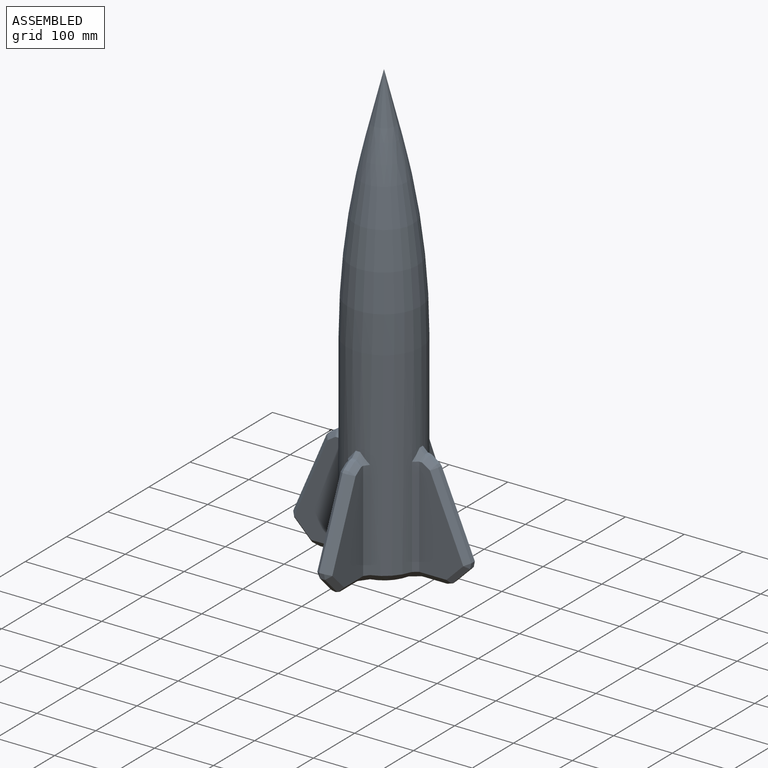
[diagram: assembled view]
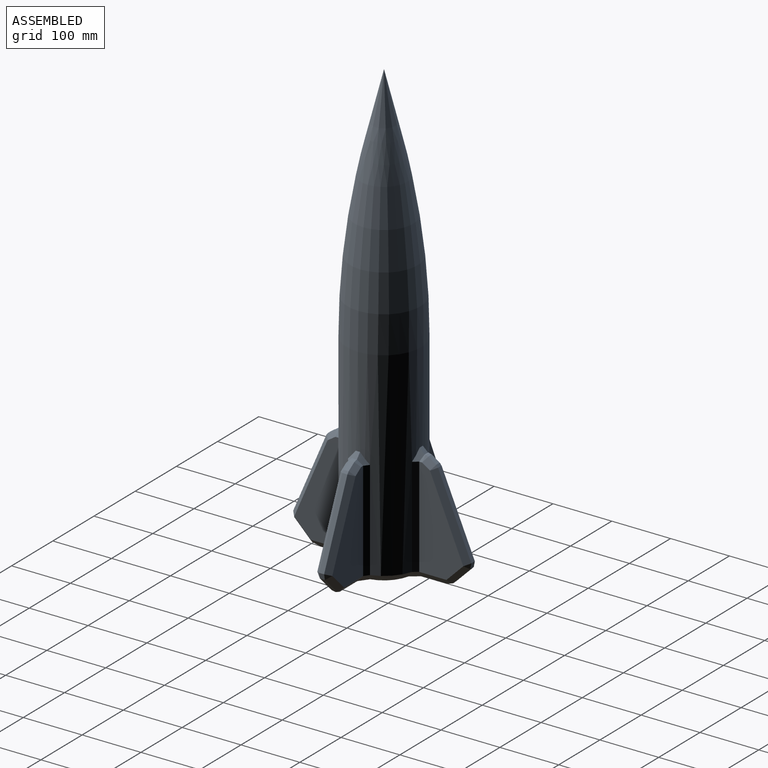
[diagram: assembled view, second angle]
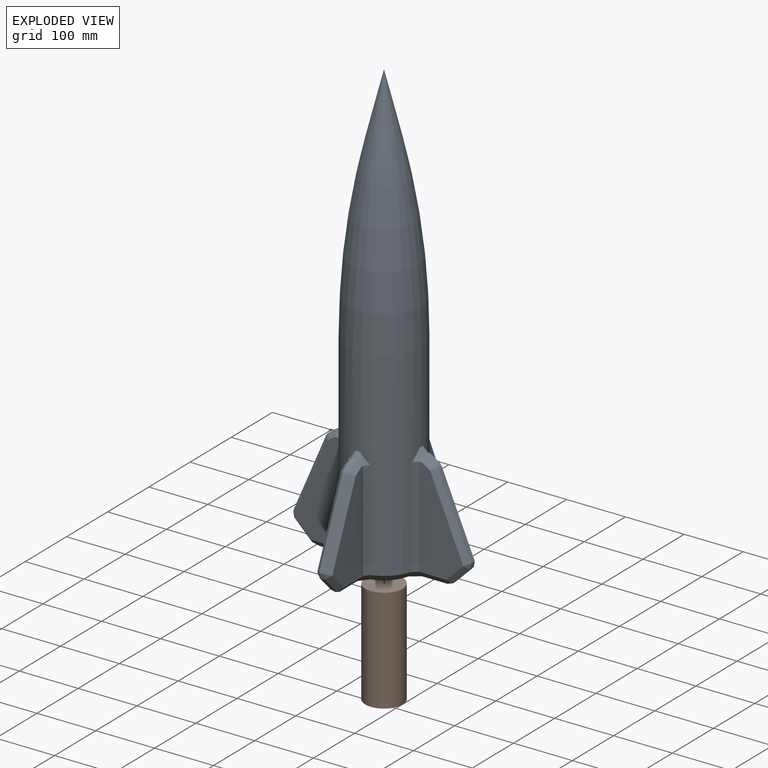
[diagram: exploded view]
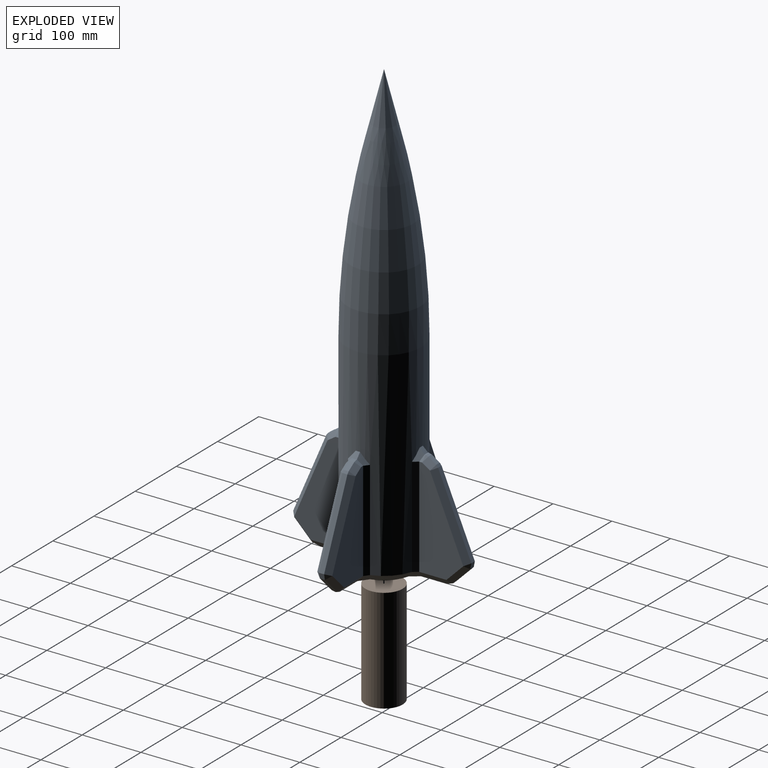
[diagram: exploded view, second angle]
ASSEMBLY  parts=2 mates=2
PART A: 147 faces, bbox 302.8x302.8x762 mm
  f0: plane 129.2x129.2mm, normal (0,0,-1), area 2494.6mm2, adj f121,f123,f124,f126,f127,f130,f135,f137
  f1: plane 169.33x74.85mm, normal (1,0,0), area 7978.3mm2, adj f76,f81,f86,f92,f95,f136
  f2: plane 8.47x1.82mm, normal (0,0,1), area 14.7mm2, adj f87,f88,f92,f93
  f3: plane 169.33x74.85mm, normal (-1,0,0), area 7978.3mm2, adj f74,f78,f83,f88,f89,f133
  f4: plane 131.85x56.51mm, normal (0,-0.92,0.39), area 1214.7mm2, adj f77,f78,f81,f82
  f5: plane 169.33x74.85mm, normal (0,-1,0), area 7978.3mm2, adj f52,f54,f59,f64,f65,f122
  f6: plane 8.47x1.82mm, normal (0,0,1), area 14.7mm2, adj f65,f66,f70,f71
  f7: plane 169.33x74.85mm, normal (0,1,0), area 7978.3mm2, adj f56,f61,f67,f71,f73,f119
  f8: plane 131.85x56.51mm, normal (-0.92,0,0.39), area 1214.7mm2, adj f54,f55,f60,f61
  f9: plane 169.33x74.85mm, normal (-1,0,0), area 7978.3mm2, adj f32,f37,f42,f48,f51,f129
  f10: plane 8.47x1.82mm, normal (0,0,1), area 14.7mm2, adj f43,f44,f48,f49
  f11: plane 169.33x74.85mm, normal (1,0,0), area 7978.3mm2, adj f30,f34,f39,f44,f45,f132
  f12: plane 131.85x56.51mm, normal (0,0.92,0.39), area 1214.7mm2, adj f33,f34,f37,f38
  f13: plane 169.33x74.85mm, normal (0,1,0), area 7978.3mm2, adj f98,f103,f108,f114,f117,f143
  f14: plane 8.47x1.82mm, normal (0,0,1), area 14.7mm2, adj f109,f110,f114,f115
  f15: plane 169.33x74.85mm, normal (0,-1,0), area 7978.3mm2, adj f96,f100,f105,f110,f111,f145
  f16: plane 131.85x56.51mm, normal (0.92,0,0.39), area 1214.7mm2, adj f99,f100,f103,f104
  f17: cylinder r=63.5mm len=338.96mm, axis (0,0,-1), area 108063.5mm2, adj f19,f45,f47,f49,f50,f51,f64,f68
  f18: cone r=63.5mm half-angle=14deg, axis (0,0,-1), area 8476.3mm2, adj f19
  f19: revolved ~308.02x127mm, area 198748.8mm2, adj f17,f18
  f20: cylinder r=31.75mm len=241.3mm, axis (0,0,-1), area 48137.2mm2, adj f21,f146
  f21: plane 63.5x63.5mm, normal (0,0,-1), area 3166.9mm2, adj f20
  f22: plane 13.46x8.88mm, normal (0,0.55,0.83), area 136.5mm2, adj f38,f39,f42,f43
  f23: plane 13.46x8.88mm, normal (-0.55,0,0.83), area 136.5mm2, adj f59,f60,f66,f67
  f24: plane 13.46x8.88mm, normal (0.55,0,0.83), area 136.5mm2, adj f104,f105,f108,f109
  f25: plane 13.46x8.88mm, normal (0,-0.55,0.83), area 136.5mm2, adj f82,f83,f86,f87
  f26: plane 31.96x31.96mm, normal (0.71,0,-0.71), area 364.8mm2, adj f96,f98,f99,f139,f142
  f27: plane 31.96x31.96mm, normal (0,0.71,-0.71), area 364.8mm2, adj f30,f32,f33,f125,f128
  f28: plane 31.96x31.96mm, normal (0,-0.71,-0.71), area 364.8mm2, adj f74,f76,f77,f131,f134
  f29: plane 31.96x31.96mm, normal (-0.71,0,-0.71), area 364.8mm2, adj f52,f55,f56,f118,f120
  f30: plane 34.95x34.59mm, normal (0.71,0.5,-0.5), area 500.8mm2, adj f11,f27,f31,f128,f132
  f31: plane 9.32x8.47mm, normal (0.64,0.76,-0.15), area 52.2mm2, adj f30,f33,f34
  f32: plane 34.95x34.59mm, normal (-0.71,0.5,-0.5), area 500.8mm2, adj f9,f27,f35,f125,f129
  f33: plane 9.32x8.47mm, normal (0,0.98,-0.19), area 80.4mm2, adj f12,f27,f31,f35
  f34: plane 135.19x64.29mm, normal (0.71,0.65,0.28), area 1717.5mm2, adj f11,f12,f31,f36
  f35: plane 9.32x8.47mm, normal (-0.64,0.76,-0.15), area 52.2mm2, adj f32,f33,f37
  f36: plane 8.47x7.78mm, normal (0.69,0.55,0.46), area 28.5mm2, adj f34,f38,f39
  f37: plane 135.19x64.29mm, normal (-0.71,0.65,0.28), area 1717.5mm2, adj f9,f12,f35,f40
  f38: plane 8.47x3.73mm, normal (0,0.77,0.64), area 41.2mm2, adj f12,f22,f36,f40
  f39: plane 18.12x15.94mm, normal (0.71,0.39,0.59), area 193.1mm2, adj f11,f22,f36,f41
  f40: plane 8.47x7.78mm, normal (-0.69,0.55,0.46), area 28.5mm2, adj f37,f38,f42
  f41: plane 8.47x8.47mm, normal (0.69,0.21,0.69), area 28.5mm2, adj f39,f43,f44
  f42: plane 18.12x15.94mm, normal (-0.71,0.39,0.59), area 193.1mm2, adj f9,f22,f40,f46
  f43: plane 8.47x4.66mm, normal (0,0.29,0.96), area 41.2mm2, adj f10,f22,f41,f46
  f44: plane 8.47x8.47mm, normal (0.71,0,0.71), area 40.1mm2, adj f10,f11,f41,f47
  f45: plane 169.33x8.09mm, normal (0.8,0.59,0), area 1703.4mm2, adj f11,f17,f47,f135
  f46: plane 8.47x8.47mm, normal (-0.69,0.21,0.69), area 28.5mm2, adj f42,f43,f48
  f47: bspline ~16.93x14.94mm, area 160.8mm2, adj f17,f44,f45,f49
  f48: plane 8.47x8.47mm, normal (-0.71,0,0.71), area 40.1mm2, adj f9,f10,f46,f50
  f49: cone r=71.97mm half-angle=45deg, axis (0,0,-1), area 95.5mm2, adj f10,f17,f47,f50
  f50: bspline ~16.93x14.94mm, area 160.8mm2, adj f17,f48,f49,f51
  f51: plane 169.33x8.09mm, normal (-0.8,0.59,0), area 1703.4mm2, adj f9,f17,f50,f126
  f52: plane 34.95x34.59mm, normal (-0.5,-0.71,-0.5), area 500.8mm2, adj f5,f29,f53,f120,f122
  f53: plane 9.32x8.47mm, normal (-0.76,-0.64,-0.15), area 52.2mm2, adj f52,f54,f55
  f54: plane 135.19x64.29mm, normal (-0.65,-0.71,0.28), area 1717.5mm2, adj f5,f8,f53,f57
  f55: plane 9.32x8.47mm, normal (-0.98,0,-0.19), area 80.4mm2, adj f8,f29,f53,f58
  f56: plane 34.95x34.59mm, normal (-0.5,0.71,-0.5), area 500.8mm2, adj f7,f29,f58,f118,f119
  f57: plane 8.47x7.78mm, normal (-0.55,-0.69,0.46), area 28.5mm2, adj f54,f59,f60
  f58: plane 9.32x8.47mm, normal (-0.76,0.64,-0.15), area 52.2mm2, adj f55,f56,f61
  f59: plane 18.12x15.94mm, normal (-0.39,-0.71,0.59), area 193.1mm2, adj f5,f23,f57,f62
  f60: plane 8.47x3.73mm, normal (-0.77,0,0.64), area 41.2mm2, adj f8,f23,f57,f63
  f61: plane 135.19x64.29mm, normal (-0.65,0.71,0.28), area 1717.5mm2, adj f7,f8,f58,f63
  f62: plane 8.47x8.47mm, normal (-0.21,-0.69,0.69), area 28.5mm2, adj f59,f65,f66
  f63: plane 8.47x7.78mm, normal (-0.55,0.69,0.46), area 28.5mm2, adj f60,f61,f67
  f64: plane 169.33x8.09mm, normal (-0.59,-0.8,0), area 1703.4mm2, adj f5,f17,f68,f124
  f65: plane 8.47x8.47mm, normal (0,-0.71,0.71), area 40.1mm2, adj f5,f6,f62,f68
  f66: plane 8.47x4.66mm, normal (-0.29,0,0.96), area 41.2mm2, adj f6,f23,f62,f69
  f67: plane 18.12x15.94mm, normal (-0.39,0.71,0.59), area 193.1mm2, adj f7,f23,f63,f69
  f68: bspline ~16.93x14.94mm, area 160.8mm2, adj f17,f64,f65,f70
  f69: plane 8.47x8.47mm, normal (-0.21,0.69,0.69), area 28.5mm2, adj f66,f67,f71
  f70: cone r=71.97mm half-angle=45deg, axis (0,0,-1), area 95.5mm2, adj f6,f17,f68,f72
  f71: plane 8.47x8.47mm, normal (0,0.71,0.71), area 40.1mm2, adj f6,f7,f69,f72
  f72: bspline ~16.93x14.94mm, area 160.8mm2, adj f17,f70,f71,f73
  f73: plane 169.33x8.09mm, normal (-0.59,0.8,0), area 1703.4mm2, adj f7,f17,f72,f121
  f74: plane 34.95x34.59mm, normal (-0.71,-0.5,-0.5), area 500.8mm2, adj f3,f28,f75,f131,f133
  f75: plane 9.32x8.47mm, normal (-0.64,-0.76,-0.15), area 52.2mm2, adj f74,f77,f78
  f76: plane 34.95x34.59mm, normal (0.71,-0.5,-0.5), area 500.8mm2, adj f1,f28,f79,f134,f136
  f77: plane 9.32x8.47mm, normal (0,-0.98,-0.19), area 80.4mm2, adj f4,f28,f75,f79
  f78: plane 135.19x64.29mm, normal (-0.71,-0.65,0.28), area 1717.5mm2, adj f3,f4,f75,f80
  f79: plane 9.32x8.47mm, normal (0.64,-0.76,-0.15), area 52.2mm2, adj f76,f77,f81
  f80: plane 8.47x7.78mm, normal (-0.69,-0.55,0.46), area 28.5mm2, adj f78,f82,f83
  f81: plane 135.19x64.29mm, normal (0.71,-0.65,0.28), area 1717.5mm2, adj f1,f4,f79,f84
  f82: plane 8.47x3.73mm, normal (0,-0.77,0.64), area 41.2mm2, adj f4,f25,f80,f84
  f83: plane 18.12x15.94mm, normal (-0.71,-0.39,0.59), area 193.1mm2, adj f3,f25,f80,f85
  f84: plane 8.47x7.78mm, normal (0.69,-0.55,0.46), area 28.5mm2, adj f81,f82,f86
  f85: plane 8.47x8.47mm, normal (-0.69,-0.21,0.69), area 28.5mm2, adj f83,f87,f88
  f86: plane 18.12x15.94mm, normal (0.71,-0.39,0.59), area 193.1mm2, adj f1,f25,f84,f90
  f87: plane 8.47x4.66mm, normal (0,-0.29,0.96), area 41.2mm2, adj f2,f25,f85,f90
  f88: plane 8.47x8.47mm, normal (-0.71,0,0.71), area 40.1mm2, adj f2,f3,f85,f91
  f89: plane 169.33x8.09mm, normal (-0.8,-0.59,0), area 1703.4mm2, adj f3,f17,f91,f130
  f90: plane 8.47x8.47mm, normal (0.69,-0.21,0.69), area 28.5mm2, adj f86,f87,f92
  f91: bspline ~16.93x14.94mm, area 160.8mm2, adj f17,f88,f89,f93
  f92: plane 8.47x8.47mm, normal (0.71,0,0.71), area 40.1mm2, adj f1,f2,f90,f94
  f93: cone r=71.97mm half-angle=45deg, axis (0,0,-1), area 95.5mm2, adj f2,f17,f91,f94
  f94: bspline ~16.93x14.94mm, area 160.8mm2, adj f17,f92,f93,f95
  f95: plane 169.33x8.09mm, normal (0.8,-0.59,0), area 1703.4mm2, adj f1,f17,f94,f138
  f96: plane 34.95x34.59mm, normal (0.5,-0.71,-0.5), area 500.8mm2, adj f15,f26,f97,f142,f145
  f97: plane 9.32x8.47mm, normal (0.76,-0.64,-0.15), area 52.2mm2, adj f96,f99,f100
  f98: plane 34.95x34.59mm, normal (0.5,0.71,-0.5), area 500.8mm2, adj f13,f26,f101,f139,f143
  f99: plane 9.32x8.47mm, normal (0.98,0,-0.19), area 80.4mm2, adj f16,f26,f97,f101
  f100: plane 135.19x64.29mm, normal (0.65,-0.71,0.28), area 1717.5mm2, adj f15,f16,f97,f102
  f101: plane 9.32x8.47mm, normal (0.76,0.64,-0.15), area 52.2mm2, adj f98,f99,f103
  f102: plane 8.47x7.78mm, normal (0.55,-0.69,0.46), area 28.5mm2, adj f100,f104,f105
  f103: plane 135.19x64.29mm, normal (0.65,0.71,0.28), area 1717.5mm2, adj f13,f16,f101,f106
  f104: plane 8.47x3.73mm, normal (0.77,0,0.64), area 41.2mm2, adj f16,f24,f102,f106
  f105: plane 18.12x15.94mm, normal (0.39,-0.71,0.59), area 193.1mm2, adj f15,f24,f102,f107
  f106: plane 8.47x7.78mm, normal (0.55,0.69,0.46), area 28.5mm2, adj f103,f104,f108
  f107: plane 8.47x8.47mm, normal (0.21,-0.69,0.69), area 28.5mm2, adj f105,f109,f110
  f108: plane 18.12x15.94mm, normal (0.39,0.71,0.59), area 193.1mm2, adj f13,f24,f106,f112
  f109: plane 8.47x4.66mm, normal (0.29,0,0.96), area 41.2mm2, adj f14,f24,f107,f112
  f110: plane 8.47x8.47mm, normal (0,-0.71,0.71), area 40.1mm2, adj f14,f15,f107,f113
  f111: plane 169.33x8.09mm, normal (0.59,-0.8,0), area 1703.4mm2, adj f15,f17,f113,f144
  f112: plane 8.47x8.47mm, normal (0.21,0.69,0.69), area 28.5mm2, adj f108,f109,f114
  f113: bspline ~16.93x14.94mm, area 160.8mm2, adj f17,f110,f111,f115
  f114: plane 8.47x8.47mm, normal (0,0.71,0.71), area 40.1mm2, adj f13,f14,f112,f116
  f115: cone r=71.97mm half-angle=45deg, axis (0,0,-1), area 95.5mm2, adj f14,f17,f113,f116
  f116: bspline ~16.93x14.94mm, area 160.8mm2, adj f17,f114,f115,f117
  f117: plane 169.33x8.09mm, normal (0.59,0.8,0), area 1703.4mm2, adj f13,f17,f116,f140
  f118: plane 13.06x6.35mm, normal (-0.29,0.41,-0.87), area 47.9mm2, adj f29,f56,f119,f120
  f119: plane 53.06x12.7mm, normal (0,0.71,-0.71), area 858.3mm2, adj f7,f56,f118,f121,f122
  f120: plane 13.06x6.35mm, normal (-0.29,-0.41,-0.87), area 47.9mm2, adj f29,f52,f118,f122
  f121: plane 19.21x18.68mm, normal (-0.42,0.57,-0.71), area 257.3mm2, adj f0,f73,f119,f123
  f122: plane 53.06x12.7mm, normal (0,-0.71,-0.71), area 858.3mm2, adj f5,f52,f119,f120,f124
  f123: cone r=50.8mm half-angle=45deg, axis (0,0,1), area 1072.2mm2, adj f0,f17,f121,f126
  f124: plane 19.21x18.68mm, normal (-0.42,-0.57,-0.71), area 257.3mm2, adj f0,f64,f122,f127
  f125: plane 13.06x6.35mm, normal (-0.41,0.29,-0.87), area 47.9mm2, adj f27,f32,f128,f129
  f126: plane 19.21x18.68mm, normal (-0.57,0.42,-0.71), area 257.3mm2, adj f0,f51,f123,f129
  f127: cone r=50.8mm half-angle=45deg, axis (0,0,1), area 1072.2mm2, adj f0,f17,f124,f130
  f128: plane 13.06x6.35mm, normal (0.41,0.29,-0.87), area 47.9mm2, adj f27,f30,f125,f132
  f129: plane 53.06x12.7mm, normal (-0.71,0,-0.71), area 858.3mm2, adj f9,f32,f125,f126,f132
  f130: plane 19.21x18.68mm, normal (-0.57,-0.42,-0.71), area 257.3mm2, adj f0,f89,f127,f133
  f131: plane 13.06x6.35mm, normal (-0.41,-0.29,-0.87), area 47.9mm2, adj f28,f74,f133,f134
  f132: plane 53.06x12.7mm, normal (0.71,0,-0.71), area 858.3mm2, adj f11,f30,f128,f129,f135
  f133: plane 53.06x12.7mm, normal (-0.71,0,-0.71), area 858.3mm2, adj f3,f74,f130,f131,f136
  f134: plane 13.06x6.35mm, normal (0.41,-0.29,-0.87), area 47.9mm2, adj f28,f76,f131,f136
  f135: plane 19.21x18.68mm, normal (0.57,0.42,-0.71), area 257.3mm2, adj f0,f45,f132,f137
  f136: plane 53.06x12.7mm, normal (0.71,0,-0.71), area 858.3mm2, adj f1,f76,f133,f134,f138
  f137: cone r=50.8mm half-angle=45deg, axis (0,0,1), area 1072.2mm2, adj f0,f17,f135,f140
  f138: plane 19.21x18.68mm, normal (0.57,-0.42,-0.71), area 257.3mm2, adj f0,f95,f136,f141
  f139: plane 13.06x6.35mm, normal (0.29,0.41,-0.87), area 47.9mm2, adj f26,f98,f142,f143
  f140: plane 19.21x18.68mm, normal (0.42,0.57,-0.71), area 257.3mm2, adj f0,f117,f137,f143
  f141: cone r=50.8mm half-angle=45deg, axis (0,0,1), area 1072.2mm2, adj f0,f17,f138,f144
  f142: plane 13.06x6.35mm, normal (0.29,-0.41,-0.87), area 47.9mm2, adj f26,f96,f139,f145
  f143: plane 53.06x12.7mm, normal (0,0.71,-0.71), area 858.3mm2, adj f13,f98,f139,f140,f145
  f144: plane 19.21x18.68mm, normal (0.42,-0.57,-0.71), area 257.3mm2, adj f0,f111,f141,f145
  f145: plane 53.06x12.7mm, normal (0,-0.71,-0.71), area 858.3mm2, adj f15,f96,f142,f143,f144
  f146: cone r=31.75mm half-angle=45deg, axis (0,0,-1), area 4299.6mm2, adj f0,f20
PART B: 3 faces, bbox 63.5x177.8x63.5 mm
  f0: cylinder r=31.75mm len=177.8mm, axis (0,1,0), area 35469.5mm2, adj f1,f2
  f1: plane 63.5x63.5mm, normal (0,-1,0), area 3166.9mm2, adj f0
  f2: plane 63.5x63.5mm, normal (0,1,0), area 3166.9mm2, adj f0
PLACE A t=(-314.99,2092.62,207.71)mm
PLACE B rot(axis=(-1,0,0),90deg) t=(-314.99,2092.62,220.41)mm
MATE cylindrical B.f0 <-> A.f17  axis (0,0,1) through (-314.99,2092.62,398.21)mm
MATE revolute A.f17 <-> B.f0  axis (0,0,1) through (-314.99,2092.62,220.41)mm
